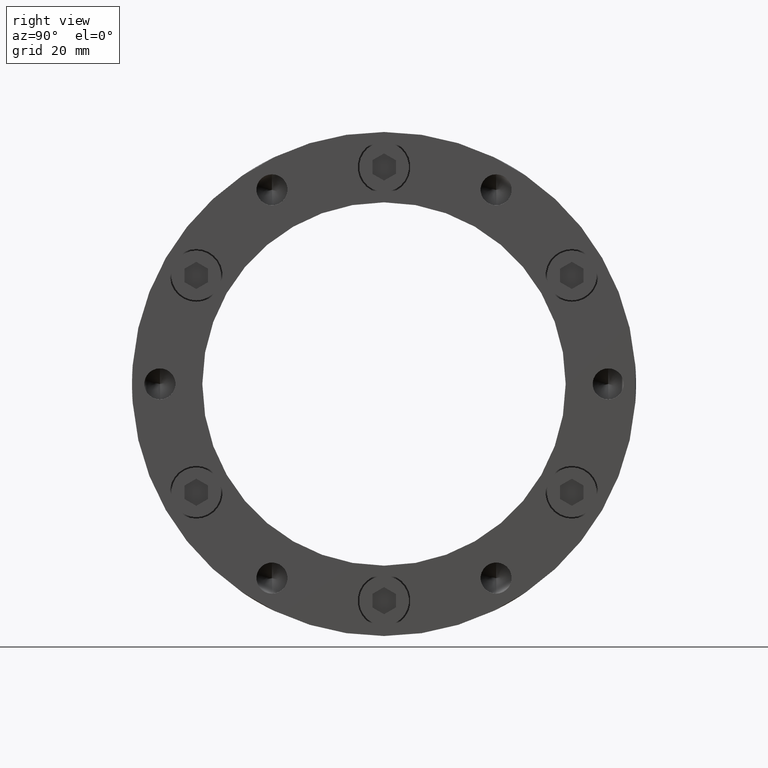
[diagram: clean part render]
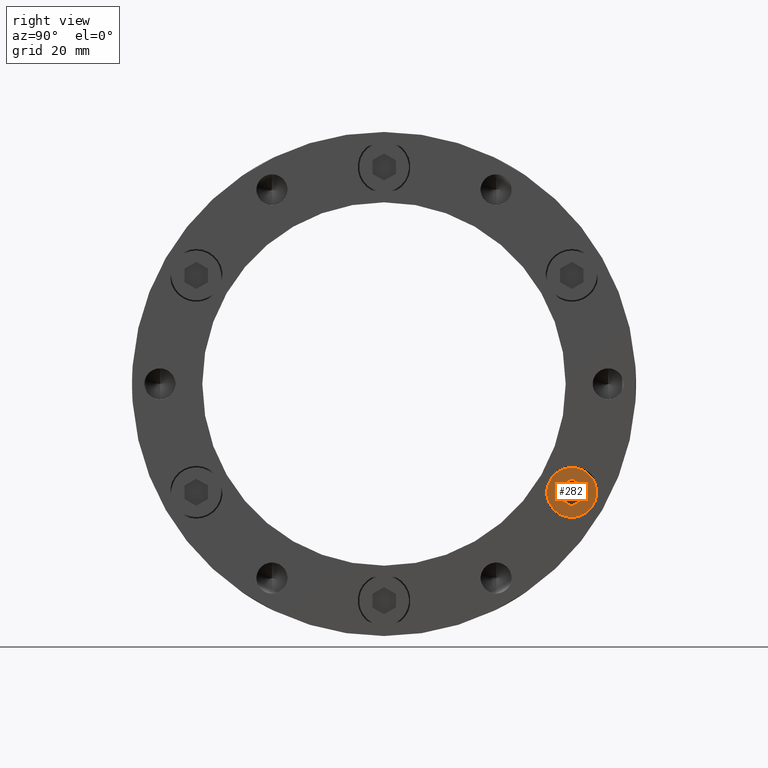
[diagram: same view with one face highlighted and labeled with its STEP entity id]
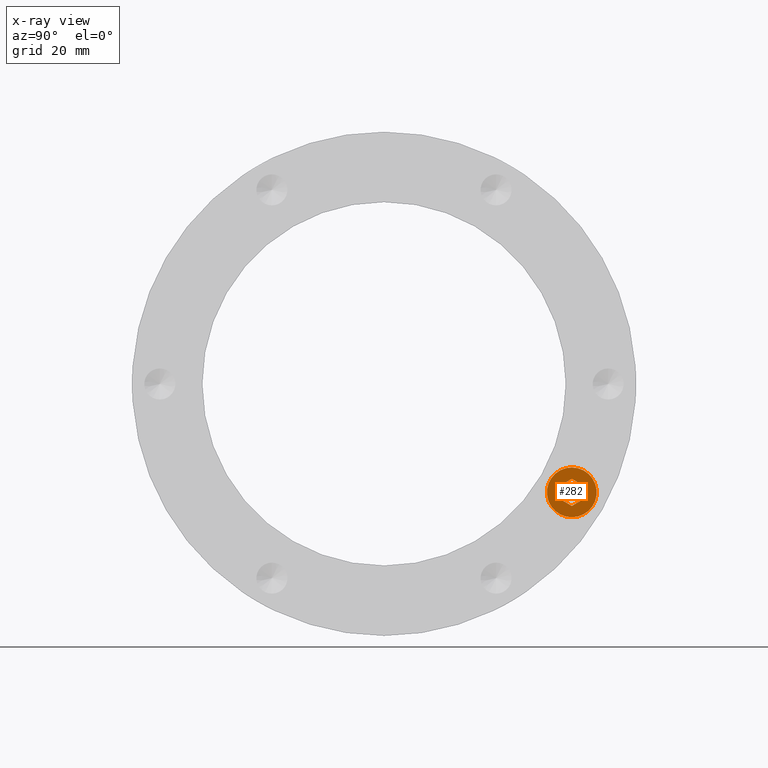
[diagram: x-ray of the same camera — body ghosted, the highlighted face saturated]
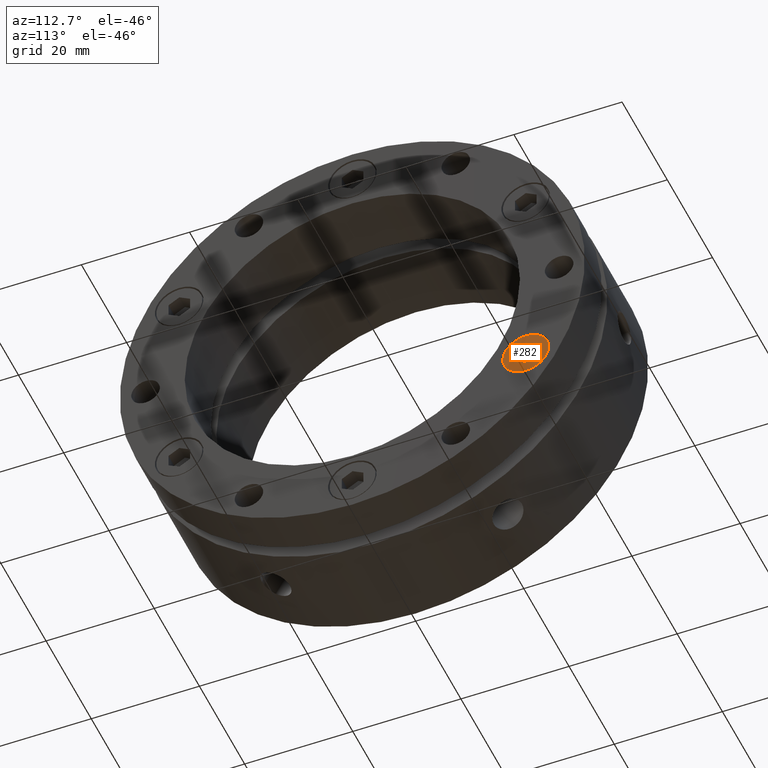
[diagram: same view with one face highlighted and labeled with its STEP entity id]
A machine part, right view. The second image highlights one B-rep face of the part: STEP entity #282.
The next image is the same camera in x-ray: the body ghosted, the highlighted face saturated — about 0% of this face is hidden behind the body in this view.
A second angle (auxiliary view) of the same face is appended — the face is thin or edge-on in the first view.
In plain terms, the highlighted planar face has unit normal (1, 0, 0).
Its self-contained STEP definition (entity closure, byte-faithful):
#53 = ORIENTED_EDGE ( 'NONE', *, *, #418, .F. ) ;
#57 = ORIENTED_EDGE ( 'NONE', *, *, #416, .F. ) ;
#58 = ORIENTED_EDGE ( 'NONE', *, *, #417, .F. ) ;
#59 = ORIENTED_EDGE ( 'NONE', *, *, #405, .T. ) ;
#60 = ORIENTED_EDGE ( 'NONE', *, *, #420, .F. ) ;
#61 = ORIENTED_EDGE ( 'NONE', *, *, #419, .F. ) ;
#62 = ORIENTED_EDGE ( 'NONE', *, *, #409, .F. ) ;
#65 = ORIENTED_EDGE ( 'NONE', *, *, #406, .T. ) ;
#86 = EDGE_LOOP ( 'NONE', ( #59, #65 ) ) ;
#112 = EDGE_LOOP ( 'NONE', ( #62, #57, #58, #53, #61, #60 ) ) ;
#282 = ADVANCED_FACE ( 'NONE', ( #4358, #4363 ), #707, .T. ) ;
#405 = EDGE_CURVE ( 'NONE', #4149, #4135, #1870, .T. ) ;
#406 = EDGE_CURVE ( 'NONE', #4135, #4149, #1865, .T. ) ;
#409 = EDGE_CURVE ( 'NONE', #4146, #4134, #1872, .T. ) ;
#416 = EDGE_CURVE ( 'NONE', #4141, #4146, #1878, .T. ) ;
#417 = EDGE_CURVE ( 'NONE', #4143, #4141, #1884, .T. ) ;
#418 = EDGE_CURVE ( 'NONE', #4133, #4143, #1885, .T. ) ;
#419 = EDGE_CURVE ( 'NONE', #4142, #4133, #1887, .T. ) ;
#420 = EDGE_CURVE ( 'NONE', #4134, #4142, #1889, .T. ) ;
#706 = CARTESIAN_POINT ( 'NONE',  ( 0.0000000000000000000, 5.000000000000000000, 0.0000000000000000000 ) ) ;
#707 = PLANE ( 'NONE',  #4545 ) ;
#712 = DIRECTION ( 'NONE',  ( 0.0000000000000000000, 1.000000000000000000, 0.0000000000000000000 ) ) ;
#713 = DIRECTION ( 'NONE',  ( 0.0000000000000000000, -0.0000000000000000000, 1.000000000000000000 ) ) ;
#1088 = CARTESIAN_POINT ( 'NONE',  ( 0.0000000000000000000, 5.000000000000000000, 0.0000000000000000000 ) ) ;
#1089 = DIRECTION ( 'NONE',  ( 0.0000000000000000000, 1.000000000000000000, 0.0000000000000000000 ) ) ;
#1090 = DIRECTION ( 'NONE',  ( 0.0000000000000000000, 0.0000000000000000000, 1.000000000000000000 ) ) ;
#1091 = CARTESIAN_POINT ( 'NONE',  ( 0.0000000000000000000, 5.000000000000000000, 0.0000000000000000000 ) ) ;
#1092 = DIRECTION ( 'NONE',  ( 0.0000000000000000000, 1.000000000000000000, 0.0000000000000000000 ) ) ;
#1093 = DIRECTION ( 'NONE',  ( 0.0000000000000000000, 0.0000000000000000000, 1.000000000000000000 ) ) ;
#1094 = DIRECTION ( 'NONE',  ( -0.8660254037844386000, 0.0000000000000000000, -0.5000000000000000000 ) ) ;
#1095 = CARTESIAN_POINT ( 'NONE',  ( 2.000000000000000000, 5.000000000000000000, -1.154700538379251700 ) ) ;
#1109 = DIRECTION ( 'NONE',  ( 0.0000000000000000000, 0.0000000000000000000, -1.000000000000000000 ) ) ;
#1113 = CARTESIAN_POINT ( 'NONE',  ( 1.953255819227850700E-016, 5.000000000000000000, 2.309401076758502900 ) ) ;
#1114 = CARTESIAN_POINT ( 'NONE',  ( -2.000000000000000000, 5.000000000000000000, 1.154700538379252100 ) ) ;
#1115 = CARTESIAN_POINT ( 'NONE',  ( 2.000000000000000000, 5.000000000000000000, 1.154700538379251700 ) ) ;
#1119 = CARTESIAN_POINT ( 'NONE',  ( -2.000000000000000400, 5.000000000000000000, -1.154700538379251700 ) ) ;
#1120 = DIRECTION ( 'NONE',  ( 0.8660254037844387100, 0.0000000000000000000, -0.4999999999999998900 ) ) ;
#1121 = CARTESIAN_POINT ( 'NONE',  ( -2.121080424092026700E-016, 5.000000000000000000, -2.309401076758503400 ) ) ;
#1122 = DIRECTION ( 'NONE',  ( 0.8660254037844388200, 0.0000000000000000000, 0.4999999999999997200 ) ) ;
#1123 = DIRECTION ( 'NONE',  ( 1.877893248421448800E-016, 0.0000000000000000000, 1.000000000000000000 ) ) ;
#1125 = DIRECTION ( 'NONE',  ( -0.8660254037844387100, 0.0000000000000000000, 0.4999999999999999400 ) ) ;
#1865 = CIRCLE ( 'NONE', #4655, 4.250000000000000000 ) ;
#1870 = CIRCLE ( 'NONE', #4663, 4.250000000000000000 ) ;
#1872 = LINE ( 'NONE', #1095, #1876 ) ;
#1876 = VECTOR ( 'NONE', #1094, 1000.000000000000200 ) ;
#1878 = LINE ( 'NONE', #1115, #1886 ) ;
#1884 = LINE ( 'NONE', #1113, #1888 ) ;
#1885 = LINE ( 'NONE', #1114, #1890 ) ;
#1886 = VECTOR ( 'NONE', #1109, 1000.000000000000000 ) ;
#1887 = LINE ( 'NONE', #1119, #1892 ) ;
#1888 = VECTOR ( 'NONE', #1120, 1000.000000000000000 ) ;
#1889 = LINE ( 'NONE', #1121, #1894 ) ;
#1890 = VECTOR ( 'NONE', #1122, 1000.000000000000100 ) ;
#1892 = VECTOR ( 'NONE', #1123, 1000.000000000000000 ) ;
#1894 = VECTOR ( 'NONE', #1125, 1000.000000000000000 ) ;
#3016 = CARTESIAN_POINT ( 'NONE',  ( -2.000000000000000000, 5.000000000000000000, 1.154700538379252100 ) ) ;
#3022 = CARTESIAN_POINT ( 'NONE',  ( -4.336808689942017700E-016, 5.000000000000000000, -2.309401076758503400 ) ) ;
#3026 = CARTESIAN_POINT ( 'NONE',  ( 5.204748896376250700E-016, 5.000000000000000000, 4.250000000000000000 ) ) ;
#3029 = CARTESIAN_POINT ( 'NONE',  ( 2.000000000000000000, 5.000000000000000000, 1.154700538379251700 ) ) ;
#3030 = CARTESIAN_POINT ( 'NONE',  ( -2.000000000000000400, 5.000000000000000000, -1.154700538379251700 ) ) ;
#3031 = CARTESIAN_POINT ( 'NONE',  ( 1.953255819227850700E-016, 5.000000000000000000, 2.309401076758502900 ) ) ;
#3034 = CARTESIAN_POINT ( 'NONE',  ( 2.000000000000000000, 5.000000000000000000, -1.154700538379251700 ) ) ;
#3037 = CARTESIAN_POINT ( 'NONE',  ( 0.0000000000000000000, 5.000000000000000000, -4.250000000000000000 ) ) ;
#4133 = VERTEX_POINT ( 'NONE', #3016 ) ;
#4134 = VERTEX_POINT ( 'NONE', #3022 ) ;
#4135 = VERTEX_POINT ( 'NONE', #3026 ) ;
#4141 = VERTEX_POINT ( 'NONE', #3029 ) ;
#4142 = VERTEX_POINT ( 'NONE', #3030 ) ;
#4143 = VERTEX_POINT ( 'NONE', #3031 ) ;
#4146 = VERTEX_POINT ( 'NONE', #3034 ) ;
#4149 = VERTEX_POINT ( 'NONE', #3037 ) ;
#4358 = FACE_BOUND ( 'NONE', #112, .T. ) ;
#4363 = FACE_OUTER_BOUND ( 'NONE', #86, .T. ) ;
#4545 = AXIS2_PLACEMENT_3D ( 'NONE', #706, #712, #713 ) ;
#4655 = AXIS2_PLACEMENT_3D ( 'NONE', #1091, #1092, #1093 ) ;
#4663 = AXIS2_PLACEMENT_3D ( 'NONE', #1088, #1089, #1090 ) ;